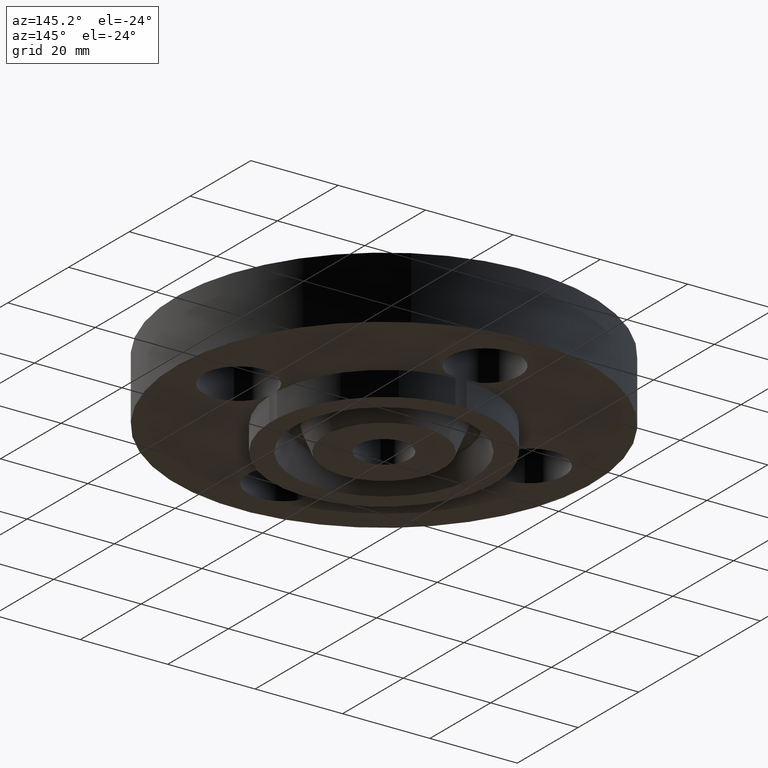
[diagram: clean part render]
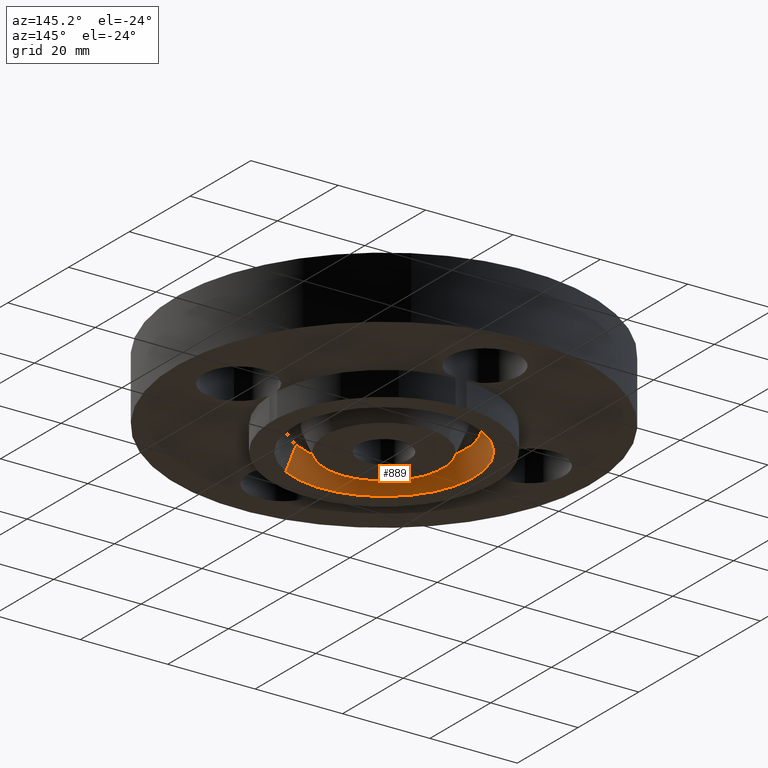
[diagram: same view with one face highlighted and labeled with its STEP entity id]
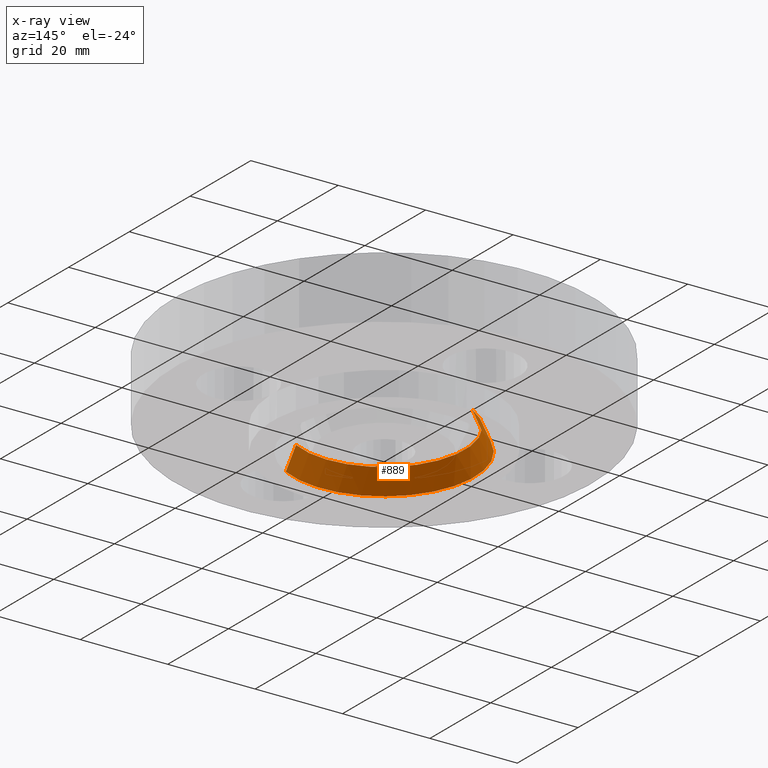
[diagram: x-ray of the same camera — body ghosted, the highlighted face saturated]
A machine part, auxiliary view. The second image highlights one B-rep face of the part: STEP entity #889.
The next image is the same camera in x-ray: the body ghosted, the highlighted face saturated — about 0% of this face is hidden behind the body in this view.
In plain terms, the highlighted conical surface has half-angle 23 deg.
Its self-contained STEP definition (entity closure, byte-faithful):
#275=AXIS2_PLACEMENT_3D('Circle Axis2P3D',#273,#274,$) ;
#850=AXIS2_PLACEMENT_3D('Cone Axis2P3D',#847,#848,#849) ;
#880=AXIS2_PLACEMENT_3D('Circle Axis2P3D',#878,#879,$) ;
#273=CARTESIAN_POINT('Axis2P3D Location',(6.99353086378E-017,3.1470888887E-016,-0.219000000001)) ;
#277=CARTESIAN_POINT('Vertex',(0.389533250117,-0.713035831539,-0.219000000001)) ;
#279=CARTESIAN_POINT('Vertex',(-0.389533250117,0.713035831539,-0.219000000001)) ;
#847=CARTESIAN_POINT('Axis2P3D Location',(0.,0.,-0.0188873350169)) ;
#852=CARTESIAN_POINT('Line Origine',(0.369171379488,-0.67576367736,-0.118943667509)) ;
#856=CARTESIAN_POINT('Vertex',(0.348809508858,-0.638491523181,-0.0188873350169)) ;
#863=CARTESIAN_POINT('Vertex',(-0.348809508858,0.638491523181,-0.0188873350169)) ;
#866=CARTESIAN_POINT('Line Origine',(-0.369171379488,0.67576367736,-0.118943667509)) ;
#878=CARTESIAN_POINT('Axis2P3D Location',(0.,0.,-0.0188873350169)) ;
#274=DIRECTION('Axis2P3D Direction',(0.,0.,-0.0393700787402)) ;
#848=DIRECTION('Axis2P3D Direction',(-0.,-0.,-0.0393700787402)) ;
#849=DIRECTION('Axis2P3D XDirection',(0.0188750212049,-0.0345504945626,0.)) ;
#853=DIRECTION('Vector Direction',(0.00737505833565,-0.0134999537303,-0.0362403485611)) ;
#867=DIRECTION('Vector Direction',(-0.00737505833565,0.0134999537303,-0.0362403485611)) ;
#879=DIRECTION('Axis2P3D Direction',(0.,0.,-0.0393700787402)) ;
#854=VECTOR('Line Direction',#853,0.0393700787402) ;
#868=VECTOR('Line Direction',#867,0.0393700787402) ;
#884=ORIENTED_EDGE('',*,*,#281,.T.) ;
#885=ORIENTED_EDGE('',*,*,#870,.T.) ;
#886=ORIENTED_EDGE('',*,*,#882,.T.) ;
#887=ORIENTED_EDGE('',*,*,#858,.F.) ;
#889=ADVANCED_FACE('PartBody',(#888),#851,.F.) ;
#276=CIRCLE('generated circle',#275,0.812500000003) ;
#881=CIRCLE('generated circle',#880,0.727557213313) ;
#851=CONICAL_SURFACE('Cone',#850,0.727557213313,0.401425727959) ;
#281=EDGE_CURVE('',#278,#280,#276,.T.) ;
#858=EDGE_CURVE('',#278,#857,#855,.F.) ;
#870=EDGE_CURVE('',#280,#864,#869,.F.) ;
#882=EDGE_CURVE('',#864,#857,#881,.F.) ;
#883=EDGE_LOOP('',(#884,#885,#886,#887)) ;
#888=FACE_OUTER_BOUND('',#883,.T.) ;
#855=LINE('Line',#852,#854) ;
#869=LINE('Line',#866,#868) ;
#278=VERTEX_POINT('',#277) ;
#280=VERTEX_POINT('',#279) ;
#857=VERTEX_POINT('',#856) ;
#864=VERTEX_POINT('',#863) ;